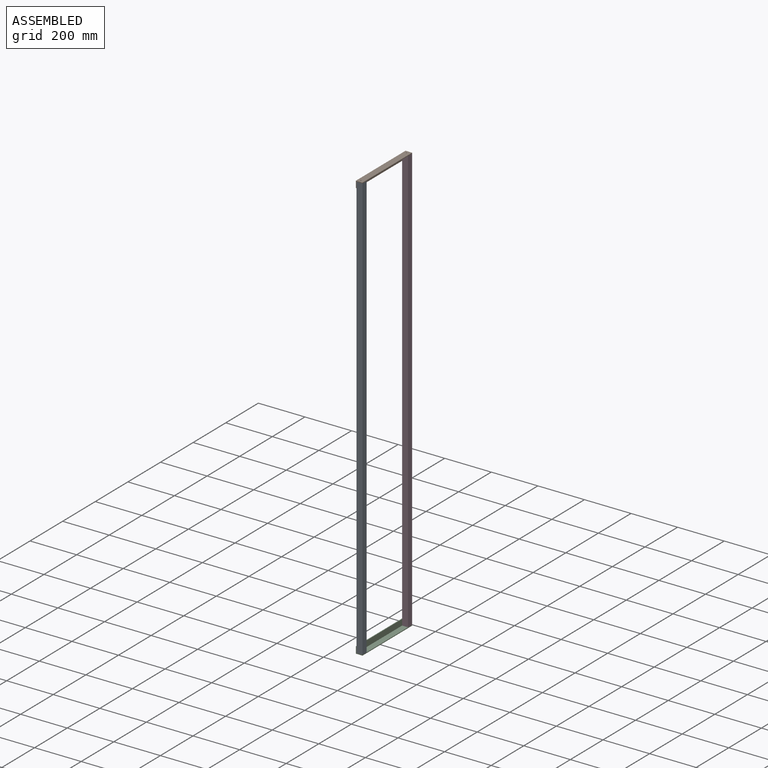
[diagram: assembled view]
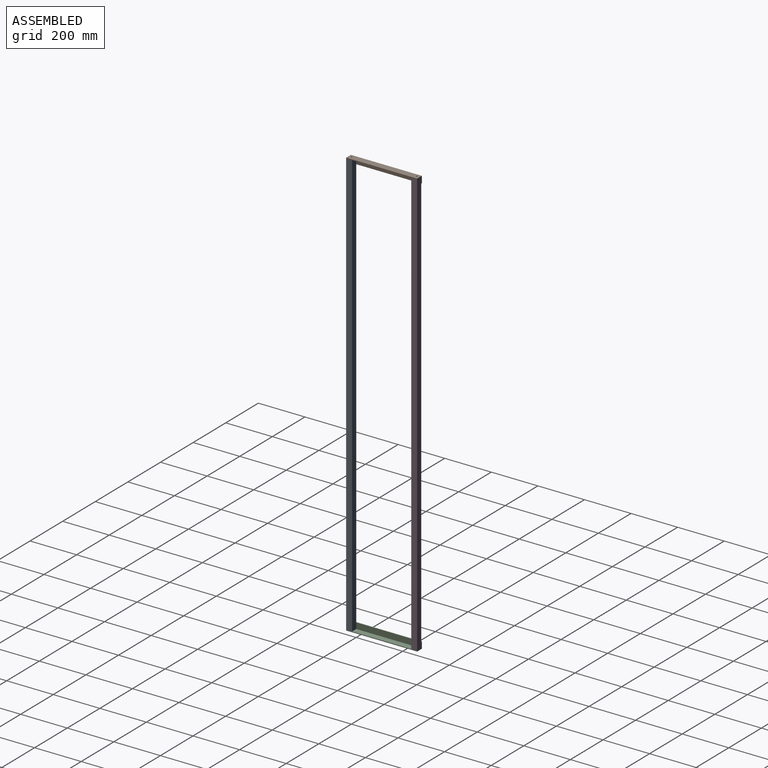
[diagram: assembled view, second angle]
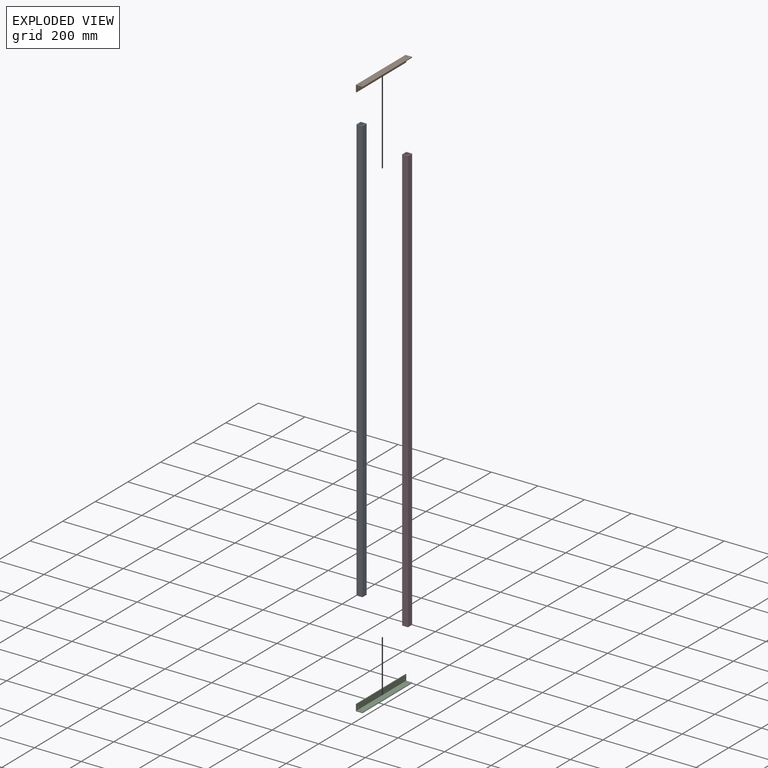
[diagram: exploded view]
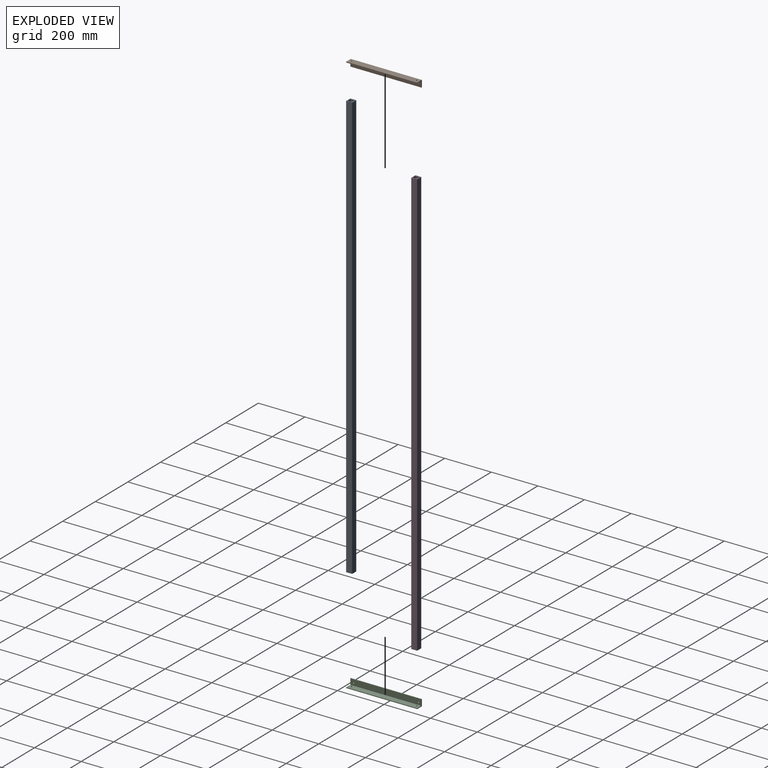
[diagram: exploded view, second angle]
ASSEMBLY  parts=4 mates=3
PART A: 10 faces, bbox 25.4x25.4x1828.8 mm
  f0: plane 1828.8x19.05mm, normal (0,-1,0), area 34838.6mm2, adj f1,f7,f8,f9
  f1: plane 1828.8x19.05mm, normal (-1,0,0), area 34838.6mm2, adj f0,f2,f8,f9
  f2: plane 1828.8x19.05mm, normal (0,1,0), area 34838.6mm2, adj f1,f7,f8,f9
  f3: plane 1828.8x25.4mm, normal (0,-1,0), area 46451.5mm2, adj f4,f6,f8,f9
  f4: plane 1828.8x25.4mm, normal (1,0,0), area 46451.5mm2, adj f3,f5,f8,f9
  f5: plane 1828.8x25.4mm, normal (0,1,0), area 46451.5mm2, adj f4,f6,f8,f9
  f6: plane 1828.8x25.4mm, normal (-1,0,0), area 46451.5mm2, adj f3,f5,f8,f9
  f7: plane 1828.8x19.05mm, normal (1,0,0), area 34838.6mm2, adj f0,f2,f8,f9
  f8: plane 25.4x25.4mm, normal (0,0,1), area 282.3mm2, adj f0,f1,f2,f3,f4,f5,f6,f7
  f9: plane 25.4x25.4mm, normal (0,0,-1), area 282.3mm2, adj f0,f1,f2,f3,f4,f5,f6,f7
PART B: 12 faces, bbox 28.6x28.6x304.8 mm
  f0: plane 304.8x28.58mm, normal (0,-1,0), area 8668.7mm2, adj f1,f5,f6,f7,f8,f9
  f1: plane 304.8x3.18mm, normal (1,0,0), area 967.7mm2, adj f0,f2,f6,f7
  f2: plane 304.8x25.4mm, normal (0,1,0), area 7701mm2, adj f1,f3,f6,f7,f8,f9
  f3: plane 304.8x25.4mm, normal (1,0,0), area 7701mm2, adj f2,f4,f6,f7,f10,f11
  f4: plane 304.8x3.18mm, normal (0,1,0), area 967.7mm2, adj f3,f5,f6,f7
  f5: plane 304.8x28.58mm, normal (-1,0,0), area 8668.7mm2, adj f0,f4,f6,f7,f10,f11
  f6: plane 28.58x28.58mm, normal (0,0,1), area 171.4mm2, adj f0,f1,f2,f3,f4,f5
  f7: plane 28.58x28.58mm, normal (0,0,-1), area 171.4mm2, adj f0,f1,f2,f3,f4,f5
  f8: cylinder r=2.55mm len=5.11mm, axis (0,-1,0), area 50.9mm2, adj f0,f2
  f9: cylinder r=2.55mm len=5.11mm, axis (0,-1,0), area 50.9mm2, adj f0,f2
  f10: cylinder r=2.55mm len=5.11mm, axis (-1,0,0), area 50.9mm2, adj f3,f5
  f11: cylinder r=2.55mm len=5.11mm, axis (-1,0,0), area 50.9mm2, adj f3,f5
PART C: same geometry as B
PART D: same geometry as A
PLACE A t=(1.58,-139.7,3.18)mm
PLACE B rot(axis=(-1,0,0),90deg) t=(-1.59,-152.4,1822.45)mm
PLACE C rot(axis=(-0.58,-0.58,-0.58),120deg) t=(-1.59,-152.4,12.7)mm
PLACE D t=(1.58,139.7,3.18)mm
MATE fastened D.f9 <-> C.f3  axis (0,0,-1) through (14.28,152.4,3.18)mm
MATE fastened B.f2 <-> D.f8  axis (0,0,-1) through (14.28,152.4,1831.98)mm
MATE fastened C.f3 <-> A.f9  axis (0,0,1) through (14.28,-152.4,3.18)mm
